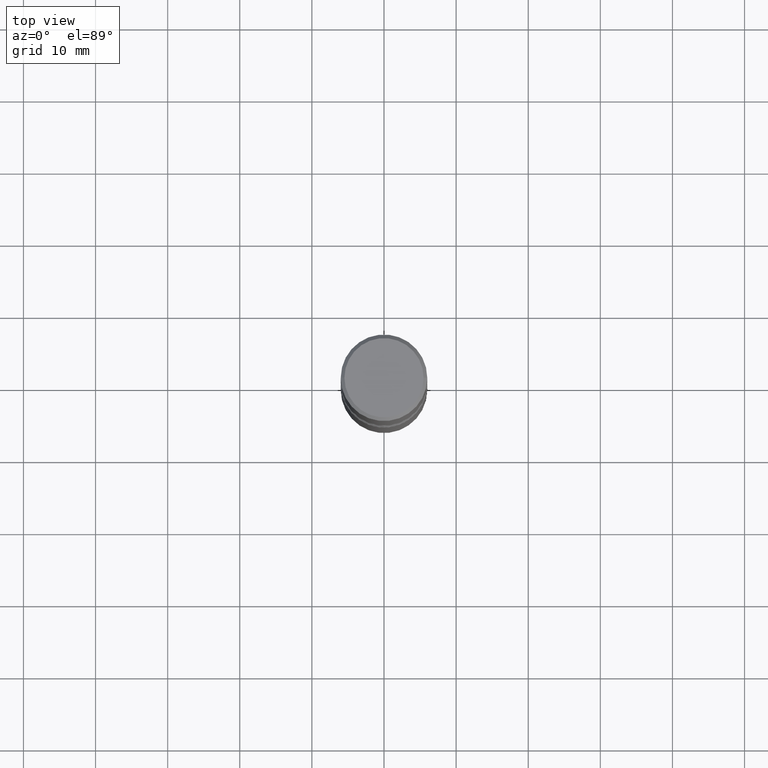
[diagram: clean part render]
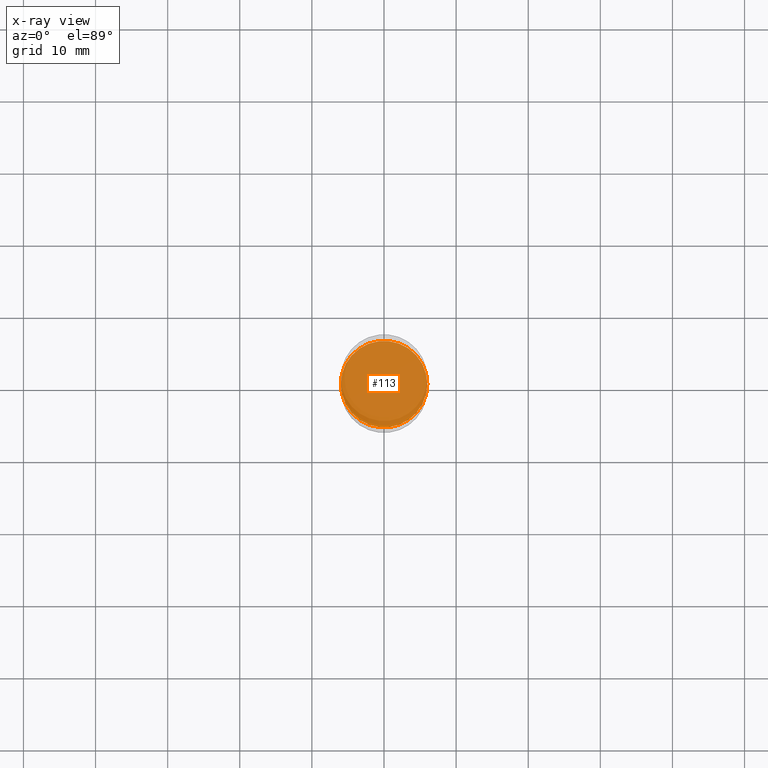
[diagram: x-ray — body ghosted, one internal face saturated and labeled with its STEP entity id]
A machine part, top view, then the same camera in x-ray: the body is ghosted and one INTERNAL B-rep face — a face not visible from any outside direction — is saturated and labeled: STEP entity #113.
In plain terms, the highlighted planar face has unit normal (0, -0, -1).
Its self-contained STEP definition (entity closure, byte-faithful):
#32 = ORIENTED_EDGE ( 'NONE', *, *, #460, .T. ) ;
#34 = EDGE_CURVE ( 'NONE', #408, #105, #133, .T. ) ;
#39 = CARTESIAN_POINT ( 'NONE',  ( 5.006363740022213922E-29, -7.147760596879691357E-15, -2.047200000000000575 ) ) ;
#79 = CARTESIAN_POINT ( 'NONE',  ( -0.2362000000000002153, -8.492732346318610806E-15, -2.047200000000000575 ) ) ;
#105 = VERTEX_POINT ( 'NONE', #261 ) ;
#113 = ADVANCED_FACE ( 'NONE', ( #312 ), #525, .F. ) ;
#114 = EDGE_LOOP ( 'NONE', ( #32, #490 ) ) ;
#133 = CIRCLE ( 'NONE', #518, 0.2362000000000002153 ) ;
#199 = DIRECTION ( 'NONE',  ( 1.000000000000000000, -6.982962677686266711E-15, 0.000000000000000000 ) ) ;
#261 = CARTESIAN_POINT ( 'NONE',  ( 0.2362000000000002153, -8.797136381349187883E-15, -2.047200000000000575 ) ) ;
#285 = AXIS2_PLACEMENT_3D ( 'NONE', #482, #480, #310 ) ;
#310 = DIRECTION ( 'NONE',  ( -1.000000000000000000, 6.982962677686265922E-15, -4.876176775795935793E-29 ) ) ;
#312 = FACE_OUTER_BOUND ( 'NONE', #114, .T. ) ;
#377 = CARTESIAN_POINT ( 'NONE',  ( 5.006363740022213922E-29, -7.147760596879691357E-15, -2.047200000000000575 ) ) ;
#408 = VERTEX_POINT ( 'NONE', #79 ) ;
#460 = EDGE_CURVE ( 'NONE', #105, #408, #555, .T. ) ;
#480 = DIRECTION ( 'NONE',  ( 2.438088387897960049E-29, -3.491481338843145188E-15, -1.000000000000000000 ) ) ;
#482 = CARTESIAN_POINT ( 'NONE',  ( 5.006363740022213922E-29, -7.147760596879691357E-15, -2.047200000000000575 ) ) ;
#490 = ORIENTED_EDGE ( 'NONE', *, *, #34, .T. ) ;
#509 = DIRECTION ( 'NONE',  ( -2.445468806185136597E-29, 3.491481338843145583E-15, 1.000000000000000000 ) ) ;
#516 = AXIS2_PLACEMENT_3D ( 'NONE', #39, #509, #519 ) ;
#518 = AXIS2_PLACEMENT_3D ( 'NONE', #377, #558, #199 ) ;
#519 = DIRECTION ( 'NONE',  ( 1.000000000000000000, -6.982962677686266711E-15, 0.000000000000000000 ) ) ;
#525 = PLANE ( 'NONE',  #285 ) ;
#555 = CIRCLE ( 'NONE', #516, 0.2362000000000002153 ) ;
#558 = DIRECTION ( 'NONE',  ( -2.445468806185136597E-29, 3.491481338843145583E-15, 1.000000000000000000 ) ) ;